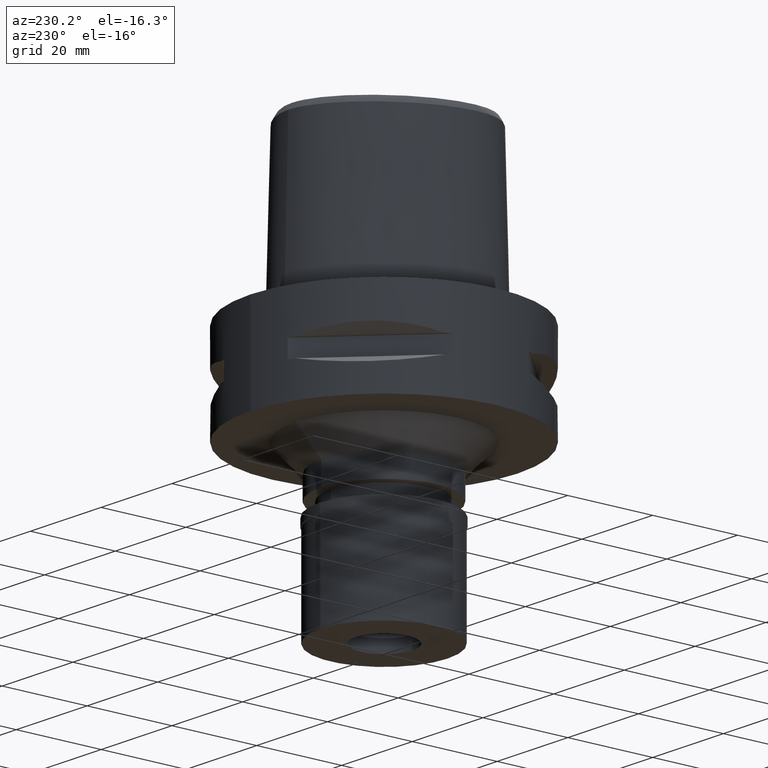
[diagram: clean part render]
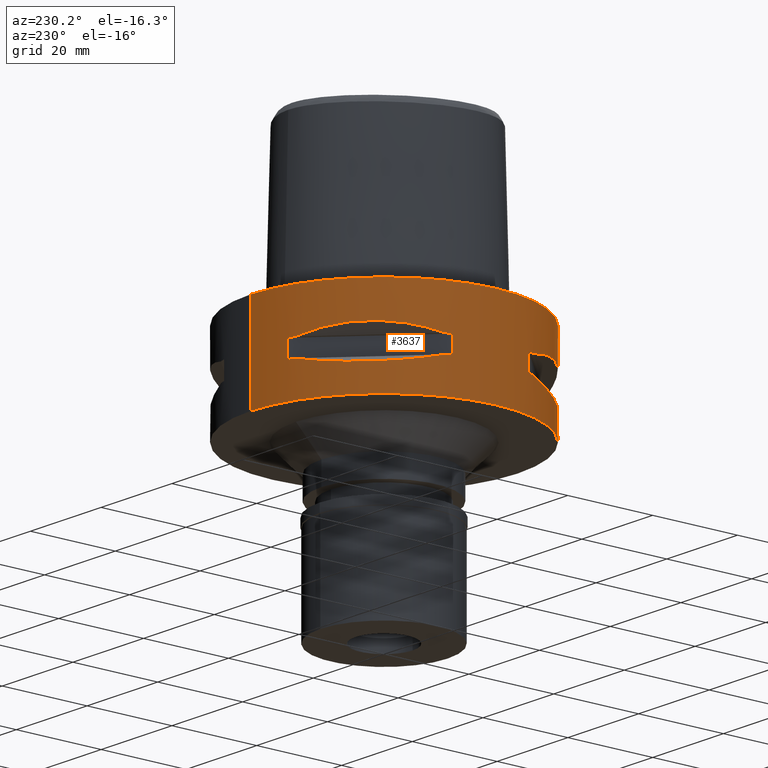
[diagram: same view with one face highlighted and labeled with its STEP entity id]
A machine part, auxiliary view. The second image highlights one B-rep face of the part: STEP entity #3637.
In plain terms, the highlighted cylindrical surface (partial cylindrical patch) has radius 31.5 mm, axis along (0, 0, -1).
Its self-contained STEP definition (entity closure, byte-faithful):
#5 = EDGE_CURVE ( 'NONE', #2084, #2124, #4489, .T. ) ;
#20 = CARTESIAN_POINT ( 'NONE',  ( 0.0000000000000000000, -31.50000000000000000, -22.00000000000000000 ) ) ;
#56 = CARTESIAN_POINT ( 'NONE',  ( -23.90617837150510638, 20.64154884324738504, -8.160613588479780134 ) ) ;
#71 = VECTOR ( 'NONE', #3429, 1000.000000000000000 ) ;
#95 = DIRECTION ( 'NONE',  ( 0.0000000000000000000, -1.000000000000000000, 0.0000000000000000000 ) ) ;
#120 = EDGE_CURVE ( 'NONE', #1449, #2084, #470, .T. ) ;
#135 = CARTESIAN_POINT ( 'NONE',  ( -23.90617837150508151, -20.64154884324741346, -8.160627831300899970 ) ) ;
#165 = CARTESIAN_POINT ( 'NONE',  ( -10.44775724750000023, -29.71690375017999841, -9.950000000002001244 ) ) ;
#175 = VERTEX_POINT ( 'NONE', #4565 ) ;
#198 = CARTESIAN_POINT ( 'NONE',  ( -14.89252659056515427, -27.86285265926851551, -15.10765629751784012 ) ) ;
#214 = ORIENTED_EDGE ( 'NONE', *, *, #2422, .T. ) ;
#250 = CARTESIAN_POINT ( 'NONE',  ( -13.25636937907522750, 28.62019653467492830, -14.74888225542484399 ) ) ;
#268 = CARTESIAN_POINT ( 'NONE',  ( -17.35163608579731687, -26.29071741524046146, -15.46976201925743055 ) ) ;
#303 = CIRCLE ( 'NONE', #2517, 31.50000000000000711 ) ;
#321 = DIRECTION ( 'NONE',  ( -0.9584925938322735872, 0.2851174276831918153, 0.0000000000000000000 ) ) ;
#323 = CARTESIAN_POINT ( 'NONE',  ( -29.71690375017999841, -10.44775724750000023, -9.950000000002001244 ) ) ;
#332 = B_SPLINE_CURVE_WITH_KNOTS ( 'NONE', 3,
 ( #2097, #2546, #250, #1051, #3198, #2171, #1760, #1392, #3224, #4288, #2471, #3927, #3582, #4675, #1341, #3949, #2859, #4733, #4707, #4338, #998, #663, #2494, #3650 ),
 .UNSPECIFIED., .F., .F.,
 ( 4, 1, 1, 1, 1, 1, 2, 2, 2, 1, 1, 1, 1, 1, 2, 2, 4 ),
 ( 0.0000000000000000000, 0.1249999999999933942, 0.1874999999999900913, 0.2187499999999883982, 0.2343749999999875655, 0.2421874999999871492, 0.2460937499999869271, 0.2499999999999867328, 0.4999999999999860112, 0.6249999999999854561, 0.6874999999999854561, 0.7187499999999855671, 0.7343749999999857891, 0.7421874999999859002, 0.7460937499999860112, 0.7499999999999861222, 1.000000000000000000 ),
 .UNSPECIFIED. ) ;
#354 = DIRECTION ( 'NONE',  ( -0.9584925938322735872, -0.2851174276831918153, 0.0000000000000000000 ) ) ;
#393 = AXIS2_PLACEMENT_3D ( 'NONE', #2572, #1882, #2956 ) ;
#398 = CIRCLE ( 'NONE', #393, 31.50000000000000711 ) ;
#401 = CARTESIAN_POINT ( 'NONE',  ( -14.84422749205291048, 27.88214534467231687, -8.906206096483270329 ) ) ;
#416 = DIRECTION ( 'NONE',  ( 0.0000000000000000000, 0.0000000000000000000, -1.000000000000000000 ) ) ;
#422 = CARTESIAN_POINT ( 'NONE',  ( -27.88210502987329775, 14.84430321572441969, -8.906184731987691450 ) ) ;
#428 = CARTESIAN_POINT ( 'NONE',  ( -30.19251670572000279, -8.981198972019999616, -9.950000000000001066 ) ) ;
#434 = CARTESIAN_POINT ( 'NONE',  ( 0.0000000000000000000, 31.50000000000000000, -22.00000000000000000 ) ) ;
#448 = CARTESIAN_POINT ( 'NONE',  ( 0.0000000000000000000, -31.50000000000000000, 0.0000000000000000000 ) ) ;
#453 = DIRECTION ( 'NONE',  ( 0.0000000000000000000, 0.0000000000000000000, 1.000000000000000000 ) ) ;
#461 = VERTEX_POINT ( 'NONE', #1815 ) ;
#470 = CIRCLE ( 'NONE', #2679, 31.50000000000001776 ) ;
#481 = DIRECTION ( 'NONE',  ( 0.0000000000000000000, 0.0000000000000000000, -1.000000000000000000 ) ) ;
#492 = CARTESIAN_POINT ( 'NONE',  ( -8.981198972016999349, 30.19251670572000279, -14.05000000000000071 ) ) ;
#506 = EDGE_CURVE ( 'NONE', #461, #3584, #398, .T. ) ;
#557 = CARTESIAN_POINT ( 'NONE',  ( -16.98999780422225214, -26.52527364208797778, -15.41788098766626369 ) ) ;
#560 = EDGE_CURVE ( 'NONE', #3514, #1312, #3303, .T. ) ;
#571 = CARTESIAN_POINT ( 'NONE',  ( -27.88214534467230976, -14.84422749205293357, -8.906206096483272106 ) ) ;
#577 = VERTEX_POINT ( 'NONE', #20 ) ;
#620 = ORIENTED_EDGE ( 'NONE', *, *, #506, .T. ) ;
#636 = CARTESIAN_POINT ( 'NONE',  ( -20.18579225685413903, -24.23018836746430082, -15.78559396979327367 ) ) ;
#659 = CARTESIAN_POINT ( 'NONE',  ( -17.76952662671760308, -26.01217882835248929, -15.52665221626392800 ) ) ;
#663 = CARTESIAN_POINT ( 'NONE',  ( -27.86285265926828814, 14.89252659056578487, -15.10765629751800354 ) ) ;
#668 = CARTESIAN_POINT ( 'NONE',  ( 0.0000000000000000000, 31.50000000000000000, 0.0000000000000000000 ) ) ;
#714 = VERTEX_POINT ( 'NONE', #668 ) ;
#722 = CARTESIAN_POINT ( 'NONE',  ( 0.0000000000000000000, 0.0000000000000000000, -9.950000000000001066 ) ) ;
#807 = DIRECTION ( 'NONE',  ( 0.0000000000000000000, 0.0000000000000000000, 1.000000000000000000 ) ) ;
#818 = ORIENTED_EDGE ( 'NONE', *, *, #1331, .F. ) ;
#835 = LINE ( 'NONE', #2342, #71 ) ;
#837 = ORIENTED_EDGE ( 'NONE', *, *, #3831, .F. ) ;
#843 = ORIENTED_EDGE ( 'NONE', *, *, #1444, .T. ) ;
#866 = CIRCLE ( 'NONE', #3600, 31.50000000000001776 ) ;
#887 = CARTESIAN_POINT ( 'NONE',  ( 0.0000000000000000000, 0.0000000000000000000, 0.0000000000000000000 ) ) ;
#939 = CARTESIAN_POINT ( 'NONE',  ( -23.89673728057072211, -20.65093790435025767, -15.83935804902266931 ) ) ;
#991 = B_SPLINE_CURVE_WITH_KNOTS ( 'NONE', 3,
 ( #4492, #3783, #401, #1986, #1884, #56, #1155, #422, #1618, #4221 ),
 .UNSPECIFIED., .F., .F.,
 ( 4, 2, 2, 2, 4 ),
 ( 0.0000000000000000000, 0.2500000000000001110, 0.5000000000000000000, 0.7500000000000000000, 1.000000000000000000 ),
 .UNSPECIFIED. ) ;
#994 = CARTESIAN_POINT ( 'NONE',  ( -26.58330558444649583, -16.89910283486696940, -15.40446471307537202 ) ) ;
#998 = CARTESIAN_POINT ( 'NONE',  ( -26.54368690921824125, 16.96123479565122238, -15.41365572341632095 ) ) ;
#1014 = ORIENTED_EDGE ( 'NONE', *, *, #1545, .T. ) ;
#1017 = CARTESIAN_POINT ( 'NONE',  ( -29.31542262584231651, -11.58970337495594194, -14.35229357167384912 ) ) ;
#1046 = CARTESIAN_POINT ( 'NONE',  ( -25.32725744466094753, -18.86897208075735222, -15.69588095933972838 ) ) ;
#1051 = CARTESIAN_POINT ( 'NONE',  ( -15.11986997312707004, 27.64634172017413860, -15.11207862404499203 ) ) ;
#1145 = DIRECTION ( 'NONE',  ( -0.3316748332540863653, 0.9433937698468619626, 0.0000000000000000000 ) ) ;
#1155 = CARTESIAN_POINT ( 'NONE',  ( -25.37272068403004610, 18.81462633026353259, -8.309724968617135943 ) ) ;
#1211 = VERTEX_POINT ( 'NONE', #492 ) ;
#1235 = ORIENTED_EDGE ( 'NONE', *, *, #2930, .F. ) ;
#1282 = CARTESIAN_POINT ( 'NONE',  ( -8.981198972019999616, 30.19251670572000279, -9.950000000000001066 ) ) ;
#1304 = CARTESIAN_POINT ( 'NONE',  ( -25.37277178164059066, -18.81455742168904521, -8.309746333112720151 ) ) ;
#1312 = VERTEX_POINT ( 'NONE', #3248 ) ;
#1331 = EDGE_CURVE ( 'NONE', #1555, #2812, #332, .T. ) ;
#1341 = CARTESIAN_POINT ( 'NONE',  ( -25.43927894892473418, 18.59229662064630517, -15.62866126334695061 ) ) ;
#1365 = EDGE_CURVE ( 'NONE', #175, #2812, #1570, .T. ) ;
#1392 = CARTESIAN_POINT ( 'NONE',  ( -16.80193241490983524, 26.64486562695853422, -15.38992683736061551 ) ) ;
#1424 = AXIS2_PLACEMENT_3D ( 'NONE', #887, #4236, #95 ) ;
#1444 = EDGE_CURVE ( 'NONE', #3848, #714, #3749, .T. ) ;
#1449 = VERTEX_POINT ( 'NONE', #428 ) ;
#1462 = EDGE_CURVE ( 'NONE', #1841, #1211, #2315, .T. ) ;
#1523 = CARTESIAN_POINT ( 'NONE',  ( 0.0000000000000000000, -31.50000000000000000, 0.0000000000000000000 ) ) ;
#1533 = EDGE_CURVE ( 'NONE', #1449, #1312, #2016, .T. ) ;
#1536 = CARTESIAN_POINT ( 'NONE',  ( 0.0000000000000000000, 0.0000000000000000000, -14.05000000000000071 ) ) ;
#1541 = CARTESIAN_POINT ( 'NONE',  ( -10.44775724750000023, -29.71690375017999841, -9.950000000002001244 ) ) ;
#1545 = EDGE_CURVE ( 'NONE', #1841, #1965, #1809, .T. ) ;
#1555 = VERTEX_POINT ( 'NONE', #3770 ) ;
#1570 = CIRCLE ( 'NONE', #2897, 31.50000000000001776 ) ;
#1573 = DIRECTION ( 'NONE',  ( 0.0000000000000000000, 0.0000000000000000000, -1.000000000000000000 ) ) ;
#1580 = AXIS2_PLACEMENT_3D ( 'NONE', #1979, #3434, #3817 ) ;
#1594 = FACE_OUTER_BOUND ( 'NONE', #4347, .T. ) ;
#1609 = EDGE_CURVE ( 'NONE', #2124, #2459, #4223, .T. ) ;
#1618 = CARTESIAN_POINT ( 'NONE',  ( -28.92472615206972364, 12.70097436179018402, -9.353533115220887595 ) ) ;
#1619 = VERTEX_POINT ( 'NONE', #4277 ) ;
#1647 = CARTESIAN_POINT ( 'NONE',  ( -20.64154884324739569, -23.90617837150510283, -8.160613588479780134 ) ) ;
#1709 = CARTESIAN_POINT ( 'NONE',  ( -12.73197616787390629, -28.91382665369116722, -14.65467361753813513 ) ) ;
#1729 = CARTESIAN_POINT ( 'NONE',  ( -27.64634172017876068, -15.11986997311391612, -15.11207862404153524 ) ) ;
#1760 = CARTESIAN_POINT ( 'NONE',  ( -16.70616724746441761, 26.70521063584523347, -15.37546661818105953 ) ) ;
#1809 = CIRCLE ( 'NONE', #3596, 31.50000000000001776 ) ;
#1815 = CARTESIAN_POINT ( 'NONE',  ( -29.71690375017999841, 10.44775724750000023, -9.950000000002001244 ) ) ;
#1825 = AXIS2_PLACEMENT_3D ( 'NONE', #2198, #3367, #2592 ) ;
#1837 = DIRECTION ( 'NONE',  ( 0.0000000000000000000, 0.0000000000000000000, -1.000000000000000000 ) ) ;
#1841 = VERTEX_POINT ( 'NONE', #1282 ) ;
#1882 = DIRECTION ( 'NONE',  ( 0.0000000000000000000, 0.0000000000000000000, 1.000000000000000000 ) ) ;
#1884 = CARTESIAN_POINT ( 'NONE',  ( -20.64154884324738504, 23.90617837150510283, -8.160627831300898194 ) ) ;
#1885 = VECTOR ( 'NONE', #1573, 1000.000000000000000 ) ;
#1919 = CARTESIAN_POINT ( 'NONE',  ( -8.981198972016999349, 30.19251670572000279, -9.950000000000001066 ) ) ;
#1930 = DIRECTION ( 'NONE',  ( 0.0000000000000000000, 0.0000000000000000000, -1.000000000000000000 ) ) ;
#1965 = VERTEX_POINT ( 'NONE', #4077 ) ;
#1979 = CARTESIAN_POINT ( 'NONE',  ( 0.0000000000000000000, 0.0000000000000000000, -22.00000000000000000 ) ) ;
#1986 = CARTESIAN_POINT ( 'NONE',  ( -18.81455742168902390, 25.37277178164060842, -8.309746333112721928 ) ) ;
#2008 = VERTEX_POINT ( 'NONE', #434 ) ;
#2013 = ORIENTED_EDGE ( 'NONE', *, *, #1533, .F. ) ;
#2016 = LINE ( 'NONE', #3142, #1885 ) ;
#2066 = EDGE_CURVE ( 'NONE', #4251, #1619, #866, .T. ) ;
#2075 = CARTESIAN_POINT ( 'NONE',  ( -26.70521063584596888, -16.70616724746230730, -15.37546661818052307 ) ) ;
#2084 = VERTEX_POINT ( 'NONE', #323 ) ;
#2097 = CARTESIAN_POINT ( 'NONE',  ( -10.44775724750000023, 29.71690375017999841, -14.05000000000000071 ) ) ;
#2124 = VERTEX_POINT ( 'NONE', #1541 ) ;
#2150 = CARTESIAN_POINT ( 'NONE',  ( -18.59229662064599609, -25.43927894892505392, -15.62866126334696482 ) ) ;
#2153 = B_SPLINE_CURVE_WITH_KNOTS ( 'NONE', 3,
 ( #4656, #1017, #4702, #1729, #3628, #3997, #2075, #4387, #3219, #994, #1046, #939, #3967, #636, #2150, #659, #268, #3921, #2167, #557, #3559, #198, #1709, #3195 ),
 .UNSPECIFIED., .F., .F.,
 ( 4, 1, 1, 1, 1, 1, 2, 2, 2, 1, 1, 1, 1, 1, 2, 2, 4 ),
 ( 0.0000000000000000000, 0.1250000000000017486, 0.1875000000000026090, 0.2187500000000033029, 0.2343750000000038858, 0.2421875000000042744, 0.2460937500000044686, 0.2500000000000046629, 0.5000000000000101030, 0.6250000000000126565, 0.6875000000000138778, 0.7187500000000146549, 0.7343750000000150990, 0.7421875000000150990, 0.7460937500000149880, 0.7500000000000149880, 1.000000000000000000 ),
 .UNSPECIFIED. ) ;
#2165 = ORIENTED_EDGE ( 'NONE', *, *, #3046, .T. ) ;
#2167 = CARTESIAN_POINT ( 'NONE',  ( -17.05047092244371854, -26.48642424310703447, -15.42670883407968674 ) ) ;
#2171 = CARTESIAN_POINT ( 'NONE',  ( -16.48208282229953880, 26.84474411198595689, -15.34094883778485041 ) ) ;
#2198 = CARTESIAN_POINT ( 'NONE',  ( 0.0000000000000000000, 0.0000000000000000000, -14.05000000000000071 ) ) ;
#2236 = DIRECTION ( 'NONE',  ( 0.0000000000000000000, 0.0000000000000000000, 1.000000000000000000 ) ) ;
#2288 = VECTOR ( 'NONE', #4569, 1000.000000000000000 ) ;
#2315 = LINE ( 'NONE', #1919, #2984 ) ;
#2342 = CARTESIAN_POINT ( 'NONE',  ( 0.0000000000000000000, 31.50000000000000000, 0.0000000000000000000 ) ) ;
#2422 = EDGE_CURVE ( 'NONE', #2008, #577, #2523, .T. ) ;
#2445 = AXIS2_PLACEMENT_3D ( 'NONE', #4563, #1930, #3852 ) ;
#2459 = VERTEX_POINT ( 'NONE', #3081 ) ;
#2471 = CARTESIAN_POINT ( 'NONE',  ( -18.86897208077244059, 25.32725744464587336, -15.69588095933971772 ) ) ;
#2494 = CARTESIAN_POINT ( 'NONE',  ( -28.91382665369093630, 12.73197616787454578, -14.65467361753829323 ) ) ;
#2517 = AXIS2_PLACEMENT_3D ( 'NONE', #1536, #4141, #1145 ) ;
#2523 = CIRCLE ( 'NONE', #1580, 31.50000000000000000 ) ;
#2546 = CARTESIAN_POINT ( 'NONE',  ( -11.58970337496597658, 29.31542262583877800, -14.35229357167647635 ) ) ;
#2564 = CARTESIAN_POINT ( 'NONE',  ( -29.71690375017999841, 10.44775724750000023, -14.05000000000000071 ) ) ;
#2572 = CARTESIAN_POINT ( 'NONE',  ( 0.0000000000000000000, 0.0000000000000000000, -9.950000000000001066 ) ) ;
#2592 = DIRECTION ( 'NONE',  ( -0.9433937698468619626, -0.3316748332540863653, 0.0000000000000000000 ) ) ;
#2636 = EDGE_CURVE ( 'NONE', #3514, #1619, #2153, .T. ) ;
#2647 = FACE_BOUND ( 'NONE', #3253, .T. ) ;
#2669 = VECTOR ( 'NONE', #807, 1000.000000000000000 ) ;
#2678 = CARTESIAN_POINT ( 'NONE',  ( 0.0000000000000000000, 0.0000000000000000000, -9.950000000000001066 ) ) ;
#2679 = AXIS2_PLACEMENT_3D ( 'NONE', #722, #2236, #354 ) ;
#2684 = EDGE_CURVE ( 'NONE', #1555, #1211, #303, .T. ) ;
#2697 = CYLINDRICAL_SURFACE ( 'NONE', #2445, 31.50000000000000000 ) ;
#2706 = CARTESIAN_POINT ( 'NONE',  ( 0.0000000000000000000, 0.0000000000000000000, -9.950000000000001066 ) ) ;
#2735 = ORIENTED_EDGE ( 'NONE', *, *, #560, .T. ) ;
#2754 = ORIENTED_EDGE ( 'NONE', *, *, #1609, .T. ) ;
#2812 = VERTEX_POINT ( 'NONE', #2564 ) ;
#2859 = CARTESIAN_POINT ( 'NONE',  ( -26.29071741524037265, 17.35163608579741634, -15.46976201925743055 ) ) ;
#2876 = ORIENTED_EDGE ( 'NONE', *, *, #2066, .T. ) ;
#2897 = AXIS2_PLACEMENT_3D ( 'NONE', #3006, #1837, #321 ) ;
#2929 = ORIENTED_EDGE ( 'NONE', *, *, #1462, .F. ) ;
#2930 = EDGE_CURVE ( 'NONE', #4251, #2459, #4167, .T. ) ;
#2956 = DIRECTION ( 'NONE',  ( -0.9433937698468619626, 0.3316748332540863653, 0.0000000000000000000 ) ) ;
#2984 = VECTOR ( 'NONE', #481, 1000.000000000000000 ) ;
#3006 = CARTESIAN_POINT ( 'NONE',  ( 0.0000000000000000000, 0.0000000000000000000, -14.05000000000000071 ) ) ;
#3011 = DIRECTION ( 'NONE',  ( 0.0000000000000000000, 0.0000000000000000000, 1.000000000000000000 ) ) ;
#3025 = ORIENTED_EDGE ( 'NONE', *, *, #3625, .T. ) ;
#3046 = EDGE_CURVE ( 'NONE', #714, #2008, #835, .T. ) ;
#3056 = CARTESIAN_POINT ( 'NONE',  ( -30.19251670572000279, 8.981198972016999349, -9.950000000000001066 ) ) ;
#3081 = CARTESIAN_POINT ( 'NONE',  ( -8.981198972016999349, -30.19251670572000279, -9.950000000000001066 ) ) ;
#3097 = CARTESIAN_POINT ( 'NONE',  ( -8.981198972016999349, -30.19251670572000279, -14.05000000000000071 ) ) ;
#3107 = FACE_BOUND ( 'NONE', #4609, .T. ) ;
#3123 = ORIENTED_EDGE ( 'NONE', *, *, #120, .T. ) ;
#3136 = CARTESIAN_POINT ( 'NONE',  ( -14.84430321572443923, -27.88210502987328354, -8.906184731987691450 ) ) ;
#3142 = CARTESIAN_POINT ( 'NONE',  ( -30.19251670572000279, -8.981198972016999349, -9.950000000000001066 ) ) ;
#3185 = CARTESIAN_POINT ( 'NONE',  ( -18.81462633026355036, -25.37272068403002834, -8.309724968617135943 ) ) ;
#3195 = CARTESIAN_POINT ( 'NONE',  ( -10.44775724750000023, -29.71690375017999841, -14.05000000000000071 ) ) ;
#3198 = CARTESIAN_POINT ( 'NONE',  ( -16.03138450080076893, 27.11872488588798191, -15.26880420108349234 ) ) ;
#3219 = CARTESIAN_POINT ( 'NONE',  ( -26.60451452154907059, -16.86571563436881149, -15.39949295786330197 ) ) ;
#3224 = CARTESIAN_POINT ( 'NONE',  ( -16.86571563436942256, 26.60451452154885033, -15.39949295786344408 ) ) ;
#3248 = CARTESIAN_POINT ( 'NONE',  ( -30.19251670572000279, -8.981198972016999349, -14.05000000000000071 ) ) ;
#3251 = EDGE_CURVE ( 'NONE', #3848, #577, #4229, .T. ) ;
#3253 = EDGE_LOOP ( 'NONE', ( #620, #837, #3258, #818, #4747, #2929, #1014, #3025 ) ) ;
#3258 = ORIENTED_EDGE ( 'NONE', *, *, #1365, .T. ) ;
#3303 = CIRCLE ( 'NONE', #1825, 31.50000000000000711 ) ;
#3365 = DIRECTION ( 'NONE',  ( -0.2851174276831918153, -0.9584925938322735872, 0.0000000000000000000 ) ) ;
#3367 = DIRECTION ( 'NONE',  ( 0.0000000000000000000, 0.0000000000000000000, -1.000000000000000000 ) ) ;
#3429 = DIRECTION ( 'NONE',  ( 0.0000000000000000000, 0.0000000000000000000, -1.000000000000000000 ) ) ;
#3434 = DIRECTION ( 'NONE',  ( 0.0000000000000000000, 0.0000000000000000000, 1.000000000000000000 ) ) ;
#3499 = CARTESIAN_POINT ( 'NONE',  ( -29.71690375017999841, -10.44775724750000023, -9.950000000002001244 ) ) ;
#3502 = DIRECTION ( 'NONE',  ( 0.0000000000000000000, 0.0000000000000000000, 1.000000000000000000 ) ) ;
#3514 = VERTEX_POINT ( 'NONE', #4789 ) ;
#3520 = CARTESIAN_POINT ( 'NONE',  ( -12.70097436179018402, -28.92472615206973430, -9.353533115220887595 ) ) ;
#3559 = CARTESIAN_POINT ( 'NONE',  ( -16.96123479565122238, -26.54368690921823060, -15.41365572341632095 ) ) ;
#3582 = CARTESIAN_POINT ( 'NONE',  ( -23.08532645888766055, 21.46242677077792393, -15.83938991065621238 ) ) ;
#3584 = VERTEX_POINT ( 'NONE', #3056 ) ;
#3596 = AXIS2_PLACEMENT_3D ( 'NONE', #2706, #3502, #4625 ) ;
#3600 = AXIS2_PLACEMENT_3D ( 'NONE', #3678, #416, #3365 ) ;
#3625 = EDGE_CURVE ( 'NONE', #1965, #461, #991, .T. ) ;
#3628 = CARTESIAN_POINT ( 'NONE',  ( -27.11872488589068553, -16.03138450079309862, -15.26880420108148506 ) ) ;
#3637 = ADVANCED_FACE ( 'NONE', ( #1594, #2647, #3107 ), #2697, .T. ) ;
#3650 = CARTESIAN_POINT ( 'NONE',  ( -29.71690375017999841, 10.44775724750000023, -14.05000000000000071 ) ) ;
#3678 = CARTESIAN_POINT ( 'NONE',  ( 0.0000000000000000000, 0.0000000000000000000, -14.05000000000000071 ) ) ;
#3730 = CARTESIAN_POINT ( 'NONE',  ( -30.19251670572000279, 8.981198972016999349, -14.05000000000000071 ) ) ;
#3749 = CIRCLE ( 'NONE', #1424, 31.50000000000000000 ) ;
#3763 = VECTOR ( 'NONE', #3011, 1000.000000000000000 ) ;
#3770 = CARTESIAN_POINT ( 'NONE',  ( -10.44775724750000023, 29.71690375017999841, -14.05000000000000071 ) ) ;
#3783 = CARTESIAN_POINT ( 'NONE',  ( -12.70092055735352510, 28.92474506843120707, -9.353547358217946694 ) ) ;
#3817 = DIRECTION ( 'NONE',  ( 0.0000000000000000000, 1.000000000000000000, 0.0000000000000000000 ) ) ;
#3831 = EDGE_CURVE ( 'NONE', #175, #3584, #4105, .T. ) ;
#3848 = VERTEX_POINT ( 'NONE', #1523 ) ;
#3852 = DIRECTION ( 'NONE',  ( 0.0000000000000000000, -1.000000000000000000, 0.0000000000000000000 ) ) ;
#3901 = ORIENTED_EDGE ( 'NONE', *, *, #2636, .F. ) ;
#3921 = CARTESIAN_POINT ( 'NONE',  ( -17.14106442934815533, -26.42800887047804181, -15.43984550238795350 ) ) ;
#3927 = CARTESIAN_POINT ( 'NONE',  ( -20.65093790435075860, 23.89673728057023183, -15.83935804902264444 ) ) ;
#3949 = CARTESIAN_POINT ( 'NONE',  ( -26.01217882835230810, 17.76952662671778427, -15.52665221626391556 ) ) ;
#3967 = CARTESIAN_POINT ( 'NONE',  ( -21.46242677077769656, -23.08532645888790213, -15.83938991065623014 ) ) ;
#3995 = AXIS2_PLACEMENT_3D ( 'NONE', #2678, #453, #4165 ) ;
#3997 = CARTESIAN_POINT ( 'NONE',  ( -26.84474411198741350, -16.48208282229545318, -15.34094883778379348 ) ) ;
#4071 = CARTESIAN_POINT ( 'NONE',  ( -8.981198972019999616, -30.19251670572000279, -14.05000000000000071 ) ) ;
#4077 = CARTESIAN_POINT ( 'NONE',  ( -10.44775724750000023, 29.71690375017999841, -9.950000000002001244 ) ) ;
#4105 = LINE ( 'NONE', #3730, #3763 ) ;
#4115 = ORIENTED_EDGE ( 'NONE', *, *, #5, .T. ) ;
#4141 = DIRECTION ( 'NONE',  ( 0.0000000000000000000, 0.0000000000000000000, -1.000000000000000000 ) ) ;
#4165 = DIRECTION ( 'NONE',  ( -0.3316748332540863653, -0.9433937698468619626, 0.0000000000000000000 ) ) ;
#4167 = LINE ( 'NONE', #3097, #2669 ) ;
#4221 = CARTESIAN_POINT ( 'NONE',  ( -29.71690375017999841, 10.44775724750000023, -9.950000000002001244 ) ) ;
#4223 = CIRCLE ( 'NONE', #3995, 31.50000000000000711 ) ;
#4229 = LINE ( 'NONE', #448, #2288 ) ;
#4236 = DIRECTION ( 'NONE',  ( 0.0000000000000000000, 0.0000000000000000000, -1.000000000000000000 ) ) ;
#4238 = ORIENTED_EDGE ( 'NONE', *, *, #3251, .F. ) ;
#4251 = VERTEX_POINT ( 'NONE', #4071 ) ;
#4274 = CARTESIAN_POINT ( 'NONE',  ( -28.92474506843118220, -12.70092055735351977, -9.353547358217939589 ) ) ;
#4277 = CARTESIAN_POINT ( 'NONE',  ( -10.44775724750000023, -29.71690375017999841, -14.05000000000000071 ) ) ;
#4288 = CARTESIAN_POINT ( 'NONE',  ( -16.89910283486671361, 26.58330558444672675, -15.40446471307534004 ) ) ;
#4338 = CARTESIAN_POINT ( 'NONE',  ( -26.52527364208796712, 16.98999780422226635, -15.41788098766625659 ) ) ;
#4347 = EDGE_LOOP ( 'NONE', ( #214, #4238, #843, #2165 ) ) ;
#4387 = CARTESIAN_POINT ( 'NONE',  ( -26.64486562695897121, -16.80193241490862022, -15.38992683736031708 ) ) ;
#4489 = B_SPLINE_CURVE_WITH_KNOTS ( 'NONE', 3,
 ( #3499, #4274, #571, #1304, #135, #1647, #3185, #3136, #3520, #165 ),
 .UNSPECIFIED., .F., .F.,
 ( 4, 2, 2, 2, 4 ),
 ( 0.0000000000000000000, 0.2500000000000000000, 0.5000000000000000000, 0.7500000000000000000, 1.000000000000000000 ),
 .UNSPECIFIED. ) ;
#4492 = CARTESIAN_POINT ( 'NONE',  ( -10.44775724750000023, 29.71690375017999841, -9.950000000002001244 ) ) ;
#4563 = CARTESIAN_POINT ( 'NONE',  ( 0.0000000000000000000, 0.0000000000000000000, 2.500000000000000000 ) ) ;
#4565 = CARTESIAN_POINT ( 'NONE',  ( -30.19251670572000279, 8.981198972019999616, -14.05000000000000071 ) ) ;
#4569 = DIRECTION ( 'NONE',  ( 0.0000000000000000000, 0.0000000000000000000, -1.000000000000000000 ) ) ;
#4609 = EDGE_LOOP ( 'NONE', ( #2754, #1235, #2876, #3901, #2735, #2013, #3123, #4115 ) ) ;
#4625 = DIRECTION ( 'NONE',  ( -0.2851174276831918153, 0.9584925938322735872, 0.0000000000000000000 ) ) ;
#4656 = CARTESIAN_POINT ( 'NONE',  ( -29.71690375017999841, -10.44775724750000023, -14.05000000000000071 ) ) ;
#4675 = CARTESIAN_POINT ( 'NONE',  ( -24.23018836746388516, 20.18579225685454404, -15.78559396979325946 ) ) ;
#4702 = CARTESIAN_POINT ( 'NONE',  ( -28.62019653468112068, -13.25636937905766999, -14.74888225542022369 ) ) ;
#4707 = CARTESIAN_POINT ( 'NONE',  ( -26.48642424310701671, 17.05047092244375406, -15.42670883407967786 ) ) ;
#4733 = CARTESIAN_POINT ( 'NONE',  ( -26.42800887047799563, 17.14106442934821573, -15.43984550238794462 ) ) ;
#4747 = ORIENTED_EDGE ( 'NONE', *, *, #2684, .T. ) ;
#4789 = CARTESIAN_POINT ( 'NONE',  ( -29.71690375017999841, -10.44775724750000023, -14.05000000000000071 ) ) ;